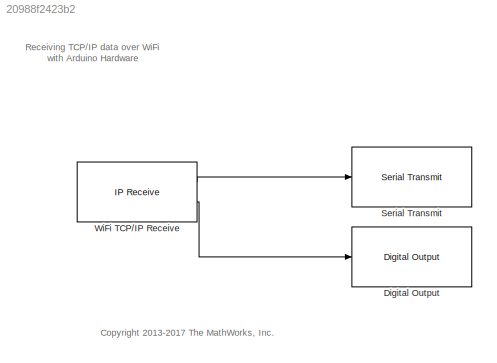
MODEL slx_20988f2423b2
KIND model
CONFIG AbsTol = auto
CONFIG EnableMultiTasking = on
CONFIG FixedStep = auto
CONFIG MaxStep = auto
CONFIG MinStep = auto
CONFIG RelTol = 1e-3
CONFIG SampleTimeConstraint = Unconstrained
CONFIG Solver = ode45
CONFIG SolverName = ode45
CONFIG StartTime = 0.0
CONFIG StopTime = 10.0
BLOCK [Reference] Digital Output  REF=arduinolib/Digital Output
  Ports = [1]
  SourceBlock = arduinolib/Digital Output
  SourceProductBaseCode = ARDUINO
  SourceProductName = Simulink Support Package for Arduino Hardware
  SourceType = Arduino Digital Output
BLOCK [Reference] Serial Transmit  REF=arduinolib/Serial Transmit
  Ports = [1]
  SourceBlock = arduinolib/Serial Transmit
  SourceProductBaseCode = ARDUINO
  SourceProductName = Simulink Support Package for Arduino Hardware
  SourceType = Arduino Serial Transmit
BLOCK [Reference] WiFi TCP//IP Receive  REF=arduinowifilib/WiFi TCP//IP Receive
  Ports = [0, 2]
  SourceBlock = arduinowifilib/WiFi TCP//IP Receive
  SourceProductBaseCode = ARDUINO
  SourceProductName = Simulink Support Package for Arduino Hardware
  SourceType = Arduino WiFi TCP Receive
ANNOTATION (root): <copyright redacted>
ANNOTATION (root): Receiving TCP/IP data over WiFi with Arduino Hardware
LINE WiFi TCP//IP Receive:1 -> Serial Transmit:1
LINE WiFi TCP//IP Receive:2 -> Digital Output:1
